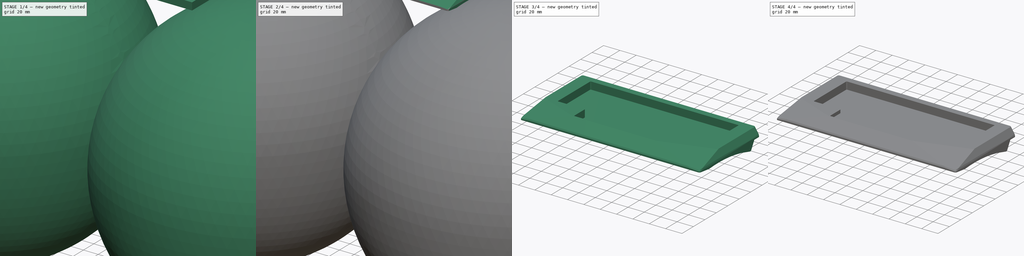
[diagram: build sequence overview — one tinted view per stage of 4, left to right]
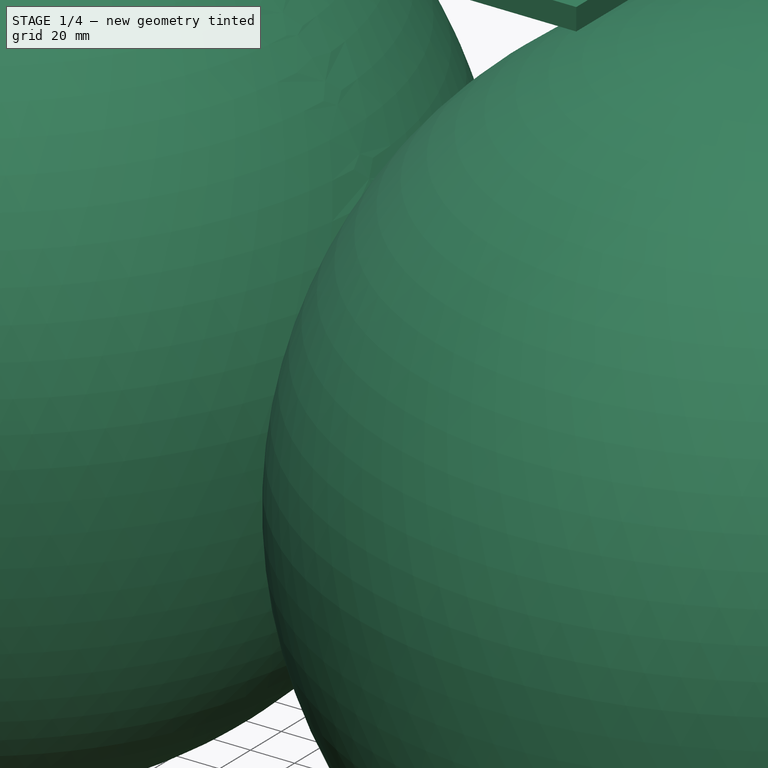
[diagram: stage 1 of 4 — iso view after this stage's code; geometry added in this stage tinted green]
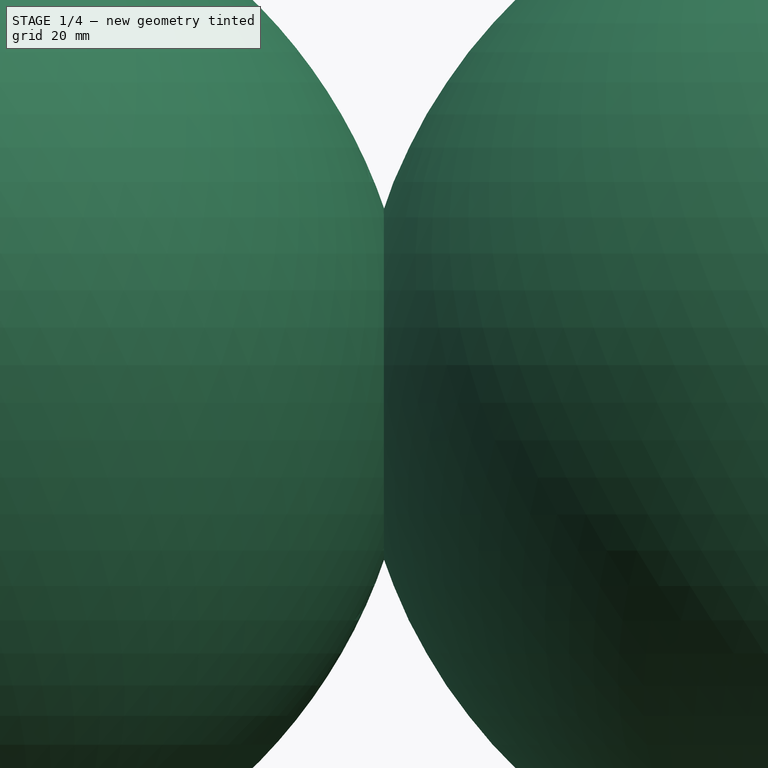
[diagram: stage 1 of 4 — front view after this stage's code; geometry added in this stage tinted green]
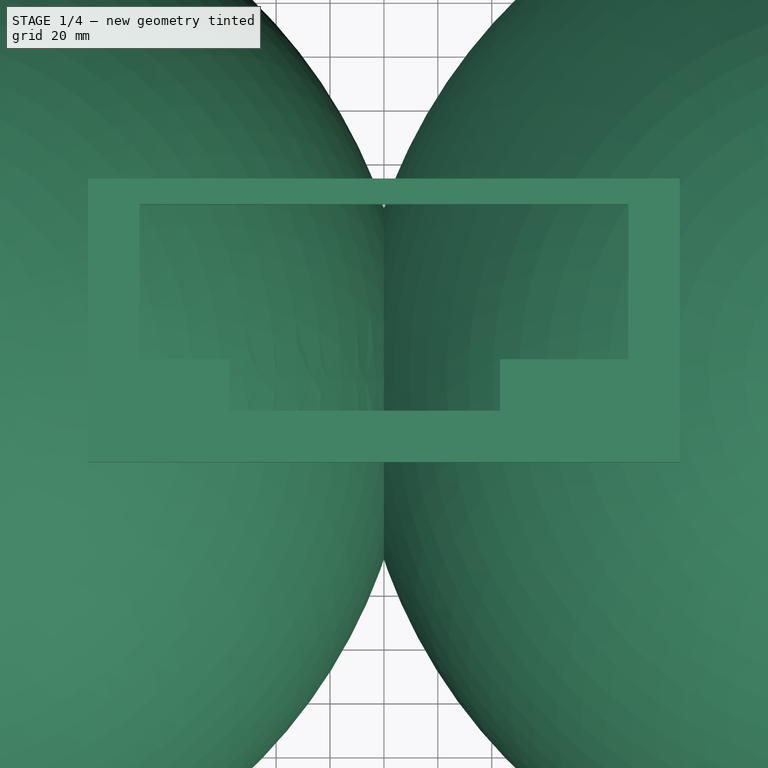
[diagram: stage 1 of 4 — top view after this stage's code; geometry added in this stage tinted green]
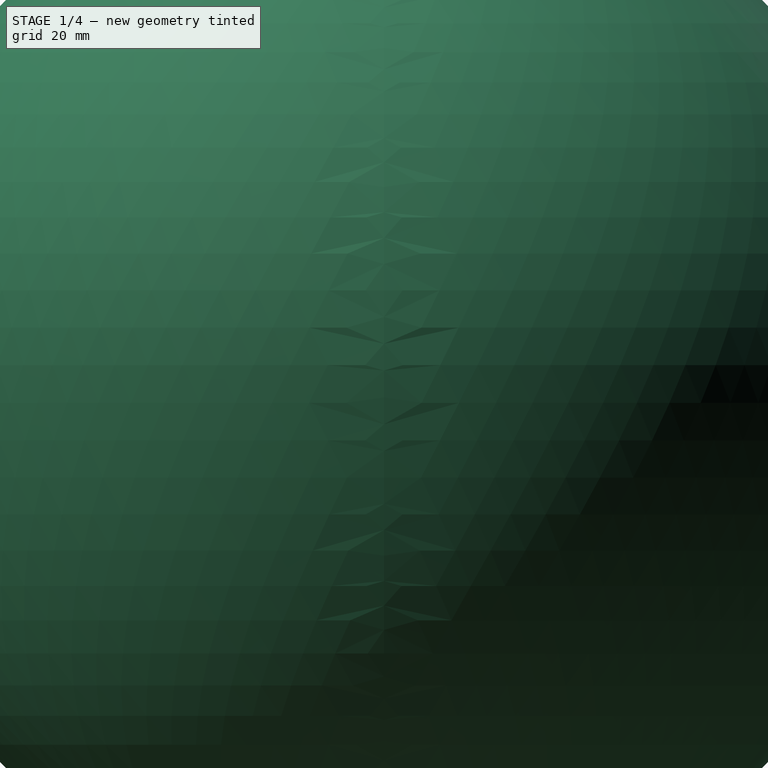
[diagram: stage 1 of 4 — right view after this stage's code; geometry added in this stage tinted green]
FCSTD DOCUMENT  (FreeCAD 0.21R33668 +26 (Git))
Label: Case
License: All rights reserved
LicenseURL: http://en.wikipedia.org/wiki/All_rights_reserved
objects: Sketcher::SketchObject×6, PartDesign::Fillet×4, PartDesign::Body×3, PartDesign::Pad×2, PartDesign::AdditiveSphere×2, PartDesign::Pocket×2, PartDesign::SubtractiveLoft×1, PartDesign::Chamfer×1, PartDesign::Boolean×1
note: 34 computed .brp shape members not serialized (recipe doc carries the construction recipe); baked Part::Feature solids carry a one-line shape summary decoded from their .brp

FEATURE [Sketcher::SketchObject] Sketch
  FullyConstrained = true
  MapMode = 5
  Support = -> [XY_Plane]
  expr: Constraints[26] = 19.05 * 3 + 0.2 * 2
  expr: Constraints[28] = 19.05 * 1.75
  expr: Constraints[29] = 19.05 * 2.5
  expr: Constraints[38] = 19.05
  expr: Constraints[39] = 19.05 / 2
  expr: Constraints[40] = 19.05
  expr: Constraints[6] = 19.05 * 4 + 0.2 * 2
  expr: Constraints[7] = 19.05 * 9.5 + 0.2 * 2
  sketch-geometry (15):
    g0: LineSegment StartX=-90.6875 StartY=38.3 StartZ=0 EndX=90.6875 EndY=38.3 EndZ=0
    g1: LineSegment StartX=90.6875 StartY=38.3 StartZ=0 EndX=90.6875 EndY=-38.3 EndZ=0
    g2: LineSegment StartX=90.6875 StartY=-38.3 StartZ=0 EndX=-90.6875 EndY=-38.3 EndZ=0
    g3: LineSegment StartX=-90.6875 StartY=-38.3 StartZ=0 EndX=-90.6875 EndY=38.3 EndZ=0
    g4: LineSegment StartX=-90.6875 StartY=38.3 StartZ=0 EndX=-90.6875 EndY=-19.25 EndZ=0
    g5: LineSegment StartX=-90.6875 StartY=-19.25 StartZ=0 EndX=-57.35 EndY=-19.25 EndZ=0
    g6: LineSegment StartX=-57.35 StartY=-19.25 StartZ=0 EndX=-57.35 EndY=-38.3 EndZ=0
    g7: LineSegment StartX=-57.35 StartY=-38.3 StartZ=0 EndX=43.0625 EndY=-38.3 EndZ=0
    g8: LineSegment StartX=43.0625 StartY=-38.3 StartZ=0 EndX=43.0625 EndY=-19.25 EndZ=0
    g9: LineSegment StartX=43.0625 StartY=-19.25 StartZ=0 EndX=90.6875 EndY=-19.25 EndZ=0
    g10: LineSegment StartX=90.6875 StartY=-19.25 StartZ=0 EndX=90.6875 EndY=38.3 EndZ=0
    g11: LineSegment StartX=-109.737 StartY=47.825 StartZ=0 EndX=109.737 EndY=47.825 EndZ=0
    g12: LineSegment StartX=109.737 StartY=47.825 StartZ=0 EndX=109.737 EndY=-57.35 EndZ=0
    g13: LineSegment StartX=109.737 StartY=-57.35 StartZ=0 EndX=-109.737 EndY=-57.35 EndZ=0
    g14: LineSegment StartX=-109.737 StartY=-57.35 StartZ=0 EndX=-109.737 EndY=47.825 EndZ=0
  constraints (41):
    c: Coincident(g0,g1)
    c: Coincident(g1,g2)
    c: Coincident(g2,g3)
    c: Coincident(g3,g0)
    c: Horizontal(g2)
    c: Vertical(g1)
    c: Distance(g3) = 76.6
    c: Distance(g0) = 181.375
    c: Symmetric(g0,g2,g-1)
    c: Symmetric(g0,g0,g-2)
    c: Coincident(g4,g0)
    c: Coincident(g5,g4)
    c: Horizontal(g5)
    c: Coincident(g6,g5)
    c: Vertical(g6)
    c: Coincident(g7,g6)
    c: Coincident(g8,g7)
    c: Coincident(g9,g8)
    c: PointOnObject(g9,g1)
    c: Horizontal(g9)
    c: Coincident(g10,g9)
    c: Coincident(g10,g0)
    c: Vertical(g8)
    c: PointOnObject(g4,g3)
    c: PointOnObject(g6,g2)
    c: PointOnObject(g7,g2)
    c: Distance(g4) = 57.55
    c: PointOnObject(g8,g5)
    c: Distance(g5) = 33.3375
    c: Distance(g9) = 47.625
    c: Coincident(g11,g12)
    c: Coincident(g12,g13)
    c: Coincident(g13,g14)
    c: Coincident(g14,g11)
    c: Horizontal(g13)
    c: Vertical(g12)
    c: Vertical(g14)
    c: Symmetric(g11,g11,g-2)
    c: Distance(g0,g14) = 19.05
    c: Distance(g0,g11) = 9.525
    c: Distance(g2,g13) = 19.05
FEATURE [PartDesign::Pad] Pad
  Direction = (0,0,1)
  Length = 10
  Length2 = 10
  Profile = -> Sketch
  ReferenceAxis = -> Sketch [N_Axis]
  Type = 0
FEATURE [PartDesign::AdditiveSphere] Sphere
  Angle1 = -90
  Angle2 = 90
  Angle3 = 360
  AttacherType = Attacher::AttachEngine3D
  AttachmentOffset = pos=(189,-25,-186) rot=(0,0,1;0rad)
  MapMode = 2
  Placement = pos=(189,-25,-186) rot=(0,0,1;0rad)
  Radius = 200
  Refine = true
  Support = -> [X_Axis001]
FEATURE [PartDesign::Body] Body001
  Group = -> [Sphere]
  Origin = -> Origin001
  Tip = -> Sphere
FEATURE [PartDesign::AdditiveSphere] Sphere001
  Angle1 = -90
  Angle2 = 90
  Angle3 = 360
  AttacherType = Attacher::AttachEngine3D
  AttachmentOffset = pos=(-189,-25,-186) rot=(0,0,1;0rad)
  MapMode = 2
  Placement = pos=(-189,-25,-186) rot=(0,0,1;0rad)
  Radius = 200
  Refine = true
  Support = -> [X_Axis001]
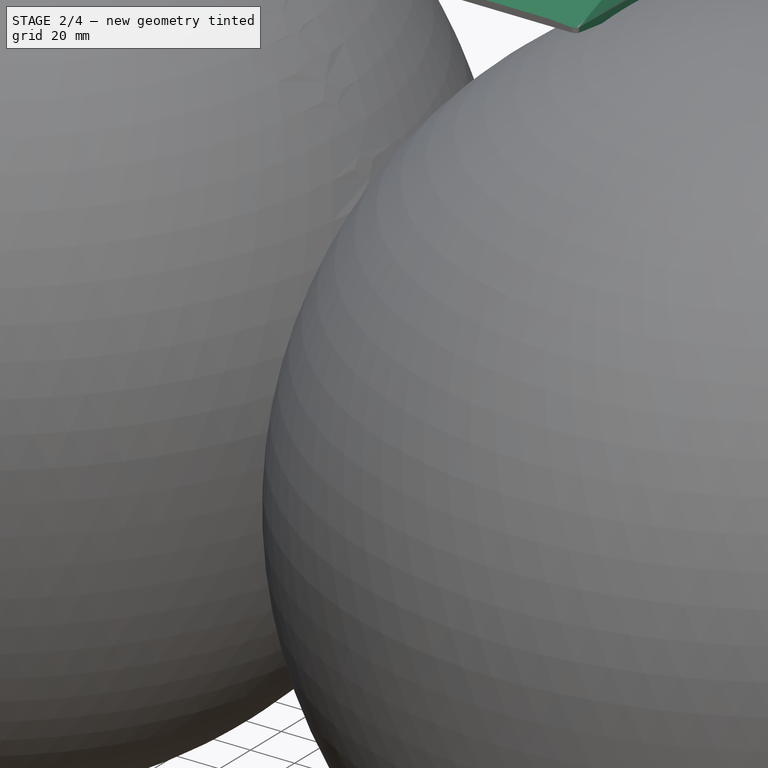
[diagram: stage 2 of 4 — iso view after this stage's code; geometry added in this stage tinted green]
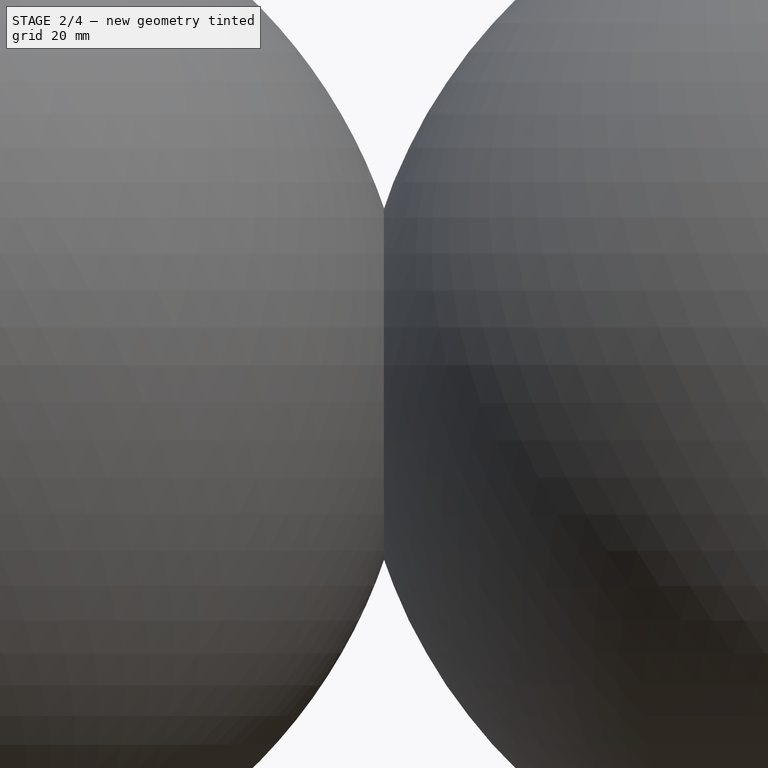
[diagram: stage 2 of 4 — front view after this stage's code; geometry added in this stage tinted green]
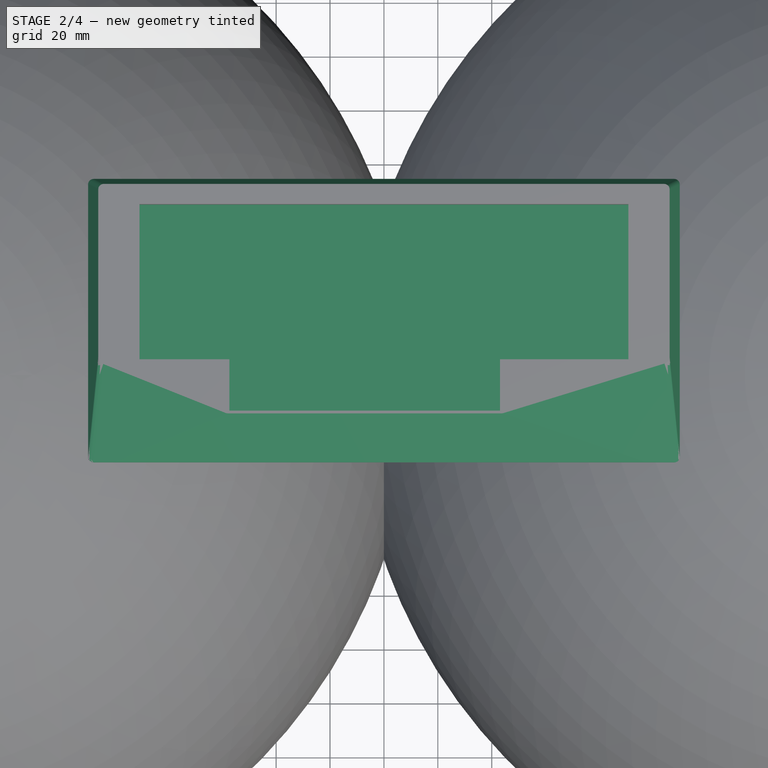
[diagram: stage 2 of 4 — top view after this stage's code; geometry added in this stage tinted green]
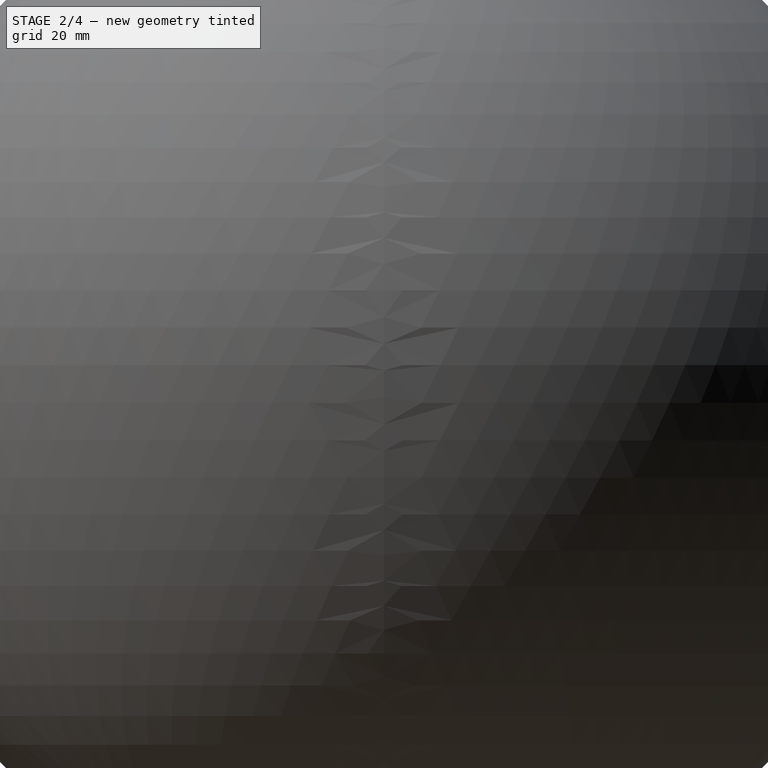
[diagram: stage 2 of 4 — right view after this stage's code; geometry added in this stage tinted green]
FEATURE [Sketcher::SketchObject] Sketch001
  FullyConstrained = true
  MapMode = 5
  Placement = pos=(109.737,0,0) rot=(0.57735,0.57735,0.57735;2.0944rad)
  Support = -> [Pad]
  expr: Constraints[10] = 19.05 * 2.5 + 0.2
  expr: Constraints[11] = -19.05 * 3 - 0.2
  expr: Constraints[15] = 19.05 / 2
  sketch-geometry (6):
    g0: LineSegment StartX=47.825 StartY=1 StartZ=0 EndX=-57.35 EndY=1 EndZ=0
    g1: LineSegment StartX=-57.35 StartY=1 StartZ=0 EndX=-57.35 EndY=-1 EndZ=0
    g2: LineSegment StartX=-57.35 StartY=-1 StartZ=0 EndX=31.9683 EndY=-11.9669 EndZ=0
    g3: LineSegment StartX=31.9683 StartY=-11.9669 StartZ=0 EndX=38.3 EndY=-1 EndZ=0
    g4: LineSegment StartX=38.3 StartY=-1 StartZ=0 EndX=47.825 EndY=-1 EndZ=0
    g5: LineSegment StartX=47.825 StartY=-1 StartZ=0 EndX=47.825 EndY=1 EndZ=0
  constraints (18):
    c: Horizontal(g0)
    c: Coincident(g1,g0)
    c: Vertical(g1)
    c: Coincident(g2,g1)
    c: Coincident(g3,g2)
    c: Coincident(g4,g3)
    c: Horizontal(g4)
    c: Coincident(g5,g4)
    c: Vertical(g5)
    c: Coincident(g5,g0)
    c: DistanceX(g-2,g0) = 47.825
    c: DistanceX(g-2,g0) = -57.35
    c: DistanceY(g-1,g1) = -1
    c: PointOnObject(g1,g4)
    c: Angle(g3,g4) = 2.0944
    c: Distance(g4) = 9.525
    c: Angle(g2,g-1) = 0.122173
    c: DistanceY(g-1,g0) = 1
FEATURE [PartDesign::Pad] Pad001
  BaseFeature = -> Pad
  Direction = (1,0,0)
  Length = 10
  Length2 = 10
  Profile = -> Sketch001
  ReferenceAxis = -> Sketch001 [N_Axis]
  Refine = true
  Type = 3
  UpToFace = -> Pad [Face4]
FEATURE [Sketcher::SketchObject] Sketch002
  FullyConstrained = true
  MapMode = 5
  Placement = pos=(0,0,10) rot=(0,0,1;0rad)
  expr: Constraints[10] = -19.05 * 2 - 0.2 - 1
  expr: Constraints[19] = 19.05 * 6.5
  expr: Constraints[20] = 19.05 * 12
  expr: Constraints[21] = -19.05 * 1 - 0.2 - 1
  expr: Constraints[30] = 19.05 * 9.5 + 0.2 * 2 + 19.05 * 0.75 * 2 + 1 * 2
  expr: Constraints[32] = 19.05 * 2.5 + 0.2 - 2
  expr: Constraints[8] = 19.05 * 5.25 + 0.2 * 2 + 1 * 2
  expr: Constraints[9] = -19.05 * 3 - 0.2 - 1
  sketch-geometry (21):
    g0: LineSegment StartX=-105.975 StartY=43.825 StartZ=0 EndX=-105.975 EndY=-20.25 EndZ=0
    g1: LineSegment StartX=105.975 StartY=-20.25 StartZ=0 EndX=105.975 EndY=43.825 EndZ=0
    g2: LineSegment StartX=103.975 StartY=45.825 StartZ=0 EndX=-103.975 EndY=45.825 EndZ=0
    g3: LineSegment StartX=-105.975 StartY=-20.25 StartZ=0 EndX=-58.35 EndY=-39.3 EndZ=0
    g4: LineSegment StartX=-58.35 StartY=-39.3 StartZ=0 EndX=44.0625 EndY=-39.3 EndZ=0
    g5: LineSegment StartX=44.0625 StartY=-39.3 StartZ=0 EndX=105.975 EndY=-20.25 EndZ=0
    g6: LineSegment StartX=-114.3 StartY=61.9125 StartZ=0 EndX=114.3 EndY=61.9125 EndZ=0
    g7: LineSegment StartX=114.3 StartY=61.9125 StartZ=0 EndX=114.3 EndY=-61.9125 EndZ=0
    g8: LineSegment StartX=114.3 StartY=-61.9125 StartZ=0 EndX=-114.3 EndY=-61.9125 EndZ=0
    g9: LineSegment StartX=-114.3 StartY=-61.9125 StartZ=0 EndX=-114.3 EndY=61.9125 EndZ=0
    g10: ArcOfCircle CenterX=-103.975 CenterY=43.825 CenterZ=0 NormalX=0 NormalY=0 NormalZ=1 AngleXU=0 Radius=2 StartAngle=1.5708 EndAngle=3.14159
    g11: ArcOfCircle CenterX=103.975 CenterY=43.825 CenterZ=0 NormalX=0 NormalY=0 NormalZ=1 AngleXU=0 Radius=2 StartAngle=1.2e-15 EndAngle=1.5708
    g12: LineSegment StartX=-105.975 StartY=43.825 StartZ=0 EndX=-105.975 EndY=-18.25 EndZ=0
    g13: LineSegment StartX=-104.118 StartY=-20.9928 StartZ=0 EndX=-58.7076 EndY=-39.157 EndZ=0
    g14: LineSegment StartX=-57.9648 StartY=-39.3 StartZ=0 EndX=43.7618 EndY=-39.3 EndZ=0
    g15: LineSegment StartX=44.3499 StartY=-39.2116 StartZ=0 EndX=104.063 EndY=-20.8382 EndZ=0
    g16: LineSegment StartX=105.975 StartY=-18.25 StartZ=0 EndX=105.975 EndY=43.825 EndZ=0
    g17: ArcOfCircle CenterX=-103.021 CenterY=-18.25 CenterZ=0 NormalX=0 NormalY=0 NormalZ=1 AngleXU=0 Radius=2.95407 StartAngle=3.14159 EndAngle=4.33188
    g18: ArcOfCircle CenterX=-57.9648 CenterY=-37.3 CenterZ=0 NormalX=0 NormalY=0 NormalZ=1 AngleXU=0 Radius=2 StartAngle=4.33188 EndAngle=4.71239
    g19: ArcOfCircle CenterX=43.7618 CenterY=-37.3 CenterZ=0 NormalX=0 NormalY=0 NormalZ=1 AngleXU=0 Radius=2 StartAngle=4.71239 EndAngle=5.01089
    g20: ArcOfCircle CenterX=103.267 CenterY=-18.25 CenterZ=0 NormalX=0 NormalY=0 NormalZ=1 AngleXU=0 Radius=2.70792 StartAngle=5.01089 EndAngle=6.28319
  constraints (57):
    c: Vertical(g1)
    c: Vertical(g0)
    c: Coincident(g3,g0)
    c: Coincident(g4,g3)
    c: Horizontal(g4)
    c: Coincident(g5,g4)
    c: Coincident(g5,g1)
    c: Equal(g0,g1)
    c: Distance(g3,g4) = 102.413
    c: DistanceX(g-2,g3) = -58.35
    c: DistanceY(g-1,g3) = -39.3
    c: Coincident(g6,g7)
    c: Coincident(g7,g8)
    c: Coincident(g8,g9)
    c: Coincident(g9,g6)
    c: Horizontal(g8)
    c: Vertical(g7)
    c: Symmetric(g6,g6,g-2)
    c: Symmetric(g6,g8,g-1)
    c: Distance(g9) = 123.825
    c: Distance(g6) = 228.6
    c: DistanceY(g-1,g0) = -20.25
    c: DistanceY(g3,g3) = 19.05
    c: DistanceX(g3,g3) = 47.625
    c: DistanceY(g5,g5) = 19.05
    c: DistanceX(g5,g5) = 61.9125
    c: Tangent(g0,g10) = -1.5708
    c: Tangent(g2,g10) = -1.5708
    c: Tangent(g2,g11) = -1.5708
    c: Tangent(g1,g11) = -1.5708
    c: Distance(g1,g0) = 211.95
    c: Symmetric(g0,g1,g-2)
    c: DistanceY(g-1,g2) = 45.825
    c: Equal(g10,g11)
    c: Radius(g10) = 2
    c: Coincident(g12,g10)
    c: Horizontal(g14)
    c: Coincident(g16,g1)
    c: Vertical(g16)
    c: Vertical(g12)
    c: Tangent(g12,g17) = -1.5708
    c: Tangent(g13,g17) = -1.5708
    c: Tangent(g13,g18) = -1.5708
    c: Tangent(g14,g18) = -1.5708
    c: Tangent(g14,g19) = -1.5708
    c: Tangent(g15,g19) = -1.5708
    c: Tangent(g15,g20) = -1.5708
    c: Tangent(g16,g20) = -1.5708
    c: Equal(g19,g18)
    c: PointOnObject(g14,g4)
    c: PointOnObject(g13,g3)
    c: PointOnObject(g13,g3)
    c: PointOnObject(g15,g5)
    c: PointOnObject(g15,g5)
    c: Distance(g12,g0) = 2
    c: Equal(g18,g10)
    c: Distance(g1,g16) = 2
FEATURE [Sketcher::SketchObject] Sketch003
  AttachmentOffset = pos=(0,0,-9) rot=(0,0,1;0rad)
  FullyConstrained = true
  MapMode = 5
  Placement = pos=(0,0,1) rot=(0,0,1;0rad)
  expr: Constraints[11] = 19.05 * 6.5
  expr: Constraints[12] = 19.05 * 12
  expr: Constraints[28] = 19.05 * 9.5 + 0.2 * 2 + 19.05 * 2
  expr: Constraints[29] = 19.05 * 2.5 + 0.2
  expr: Constraints[2] = -19.05 * 3 - 0.2
  sketch-geometry (21):
    g0: LineSegment StartX=-107.737 StartY=47.825 StartZ=0 EndX=107.737 EndY=47.825 EndZ=0
    g1: LineSegment StartX=109.737 StartY=45.825 StartZ=0 EndX=109.737 EndY=-57.35 EndZ=0
    g2: LineSegment StartX=-109.737 StartY=-57.35 StartZ=0 EndX=-109.737 EndY=45.825 EndZ=0
    g3: LineSegment StartX=-114.3 StartY=61.9125 StartZ=0 EndX=114.3 EndY=61.9125 EndZ=0
    g4: LineSegment StartX=114.3 StartY=61.9125 StartZ=0 EndX=114.3 EndY=-61.9125 EndZ=0
    g5: LineSegment StartX=114.3 StartY=-61.9125 StartZ=0 EndX=-114.3 EndY=-61.9125 EndZ=0
    g6: LineSegment StartX=-114.3 StartY=-61.9125 StartZ=0 EndX=-114.3 EndY=61.9125 EndZ=0
    g7: LineSegment StartX=-109.737 StartY=-57.35 StartZ=0 EndX=-104.737 EndY=-59.35 EndZ=0
    g8: LineSegment StartX=-104.737 StartY=-59.35 StartZ=0 EndX=103.237 EndY=-59.35 EndZ=0
    g9: LineSegment StartX=103.237 StartY=-59.35 StartZ=0 EndX=109.737 EndY=-57.35 EndZ=0
    g10: ArcOfCircle CenterX=-107.737 CenterY=45.825 CenterZ=0 NormalX=0 NormalY=0 NormalZ=1 AngleXU=0 Radius=2 StartAngle=1.5708 EndAngle=3.14159
    g11: ArcOfCircle CenterX=107.737 CenterY=45.825 CenterZ=0 NormalX=0 NormalY=0 NormalZ=1 AngleXU=0 Radius=2 StartAngle=1.5e-15 EndAngle=1.5708
    g12: LineSegment StartX=-109.737 StartY=45.825 StartZ=0 EndX=-109.737 EndY=-55.35 EndZ=0
    g13: LineSegment StartX=-107.881 StartY=-58.0928 StartZ=0 EndX=-105.095 EndY=-59.207 EndZ=0
    g14: LineSegment StartX=-104.352 StartY=-59.35 StartZ=0 EndX=102.937 EndY=-59.35 EndZ=0
    g15: LineSegment StartX=103.525 StartY=-59.2616 StartZ=0 EndX=107.826 EndY=-57.9382 EndZ=0
    g16: LineSegment StartX=109.737 StartY=-55.35 StartZ=0 EndX=109.737 EndY=45.825 EndZ=0
    g17: ArcOfCircle CenterX=-106.783 CenterY=-55.35 CenterZ=0 NormalX=0 NormalY=0 NormalZ=1 AngleXU=0 Radius=2.95407 StartAngle=3.14159 EndAngle=4.33188
    g18: ArcOfCircle CenterX=-104.352 CenterY=-57.35 CenterZ=0 NormalX=0 NormalY=0 NormalZ=1 AngleXU=0 Radius=2 StartAngle=4.33188 EndAngle=4.71239
    g19: ArcOfCircle CenterX=102.937 CenterY=-57.35 CenterZ=0 NormalX=0 NormalY=0 NormalZ=1 AngleXU=0 Radius=2 StartAngle=4.71239 EndAngle=5.01089
    g20: ArcOfCircle CenterX=107.03 CenterY=-55.35 CenterZ=0 NormalX=0 NormalY=0 NormalZ=1 AngleXU=0 Radius=2.70792 StartAngle=5.01089 EndAngle=6.28319
  constraints (53):
    c: Vertical(g1)
    c: Vertical(g2)
    c: DistanceY(g-1,g2) = -57.35
    c: Coincident(g3,g4)
    c: Coincident(g4,g5)
    c: Coincident(g5,g6)
    c: Coincident(g6,g3)
    c: Horizontal(g5)
    c: Vertical(g4)
    c: Symmetric(g3,g3,g-2)
    c: Symmetric(g3,g5,g-1)
    c: Distance(g6) = 123.825
    c: Distance(g3) = 228.6
    c: Coincident(g7,g2)
    c: Coincident(g8,g7)
    c: Horizontal(g8)
    c: Coincident(g9,g8)
    c: Coincident(g9,g1)
    c: Distance(g8,g1) = 6.5
    c: Distance(g7,g2) = 5
    c: Distance(g2,g8) = 2
    c: Equal(g1,g2)
    c: Tangent(g2,g10) = 1.5708
    c: Tangent(g0,g10) = 1.5708
    c: Tangent(g0,g11) = 1.5708
    c: Tangent(g1,g11) = 1.5708
    c: Symmetric(g2,g1,g-2)
    c: Equal(g11,g10)
    c: Distance(g2,g1) = 219.475
    c: DistanceY(g-1,g0) = 47.825
    c: Radius(g10) = 2
    c: Coincident(g12,g10)
    c: Vertical(g12)
    c: Horizontal(g14)
    c: Coincident(g16,g11)
    c: Vertical(g16)
    c: Tangent(g12,g17) = -1.5708
    c: Tangent(g13,g17) = -1.5708
    c: Tangent(g13,g18) = -1.5708
    c: Tangent(g14,g18) = -1.5708
    c: Tangent(g14,g19) = -1.5708
    c: Tangent(g15,g19) = -1.5708
    c: Tangent(g15,g20) = -1.5708
    c: Tangent(g16,g20) = -1.5708
    c: Equal(g19,g18)
    c: PointOnObject(g13,g7)
    c: PointOnObject(g15,g9)
    c: PointOnObject(g15,g9)
    c: PointOnObject(g13,g7)
    c: PointOnObject(g14,g8)
    c: Distance(g2,g12) = 2
    c: Distance(g1,g16) = 2
    c: Equal(g18,g10)
FEATURE [PartDesign::Fillet] Fillet
  Base = -> Pad001 [Edge11,Edge42,Edge41,Edge13]
  BaseFeature = -> Pad001
  Radius = 2
  Refine = true
  SupportTransform = false
  UseAllEdges = false
FEATURE [PartDesign::SubtractiveLoft] SubtractiveLoft
  BaseFeature = -> Fillet
  Closed = false
  Profile = -> Sketch002
  Refine = true
  Ruled = false
  Sections = -> [Sketch003]
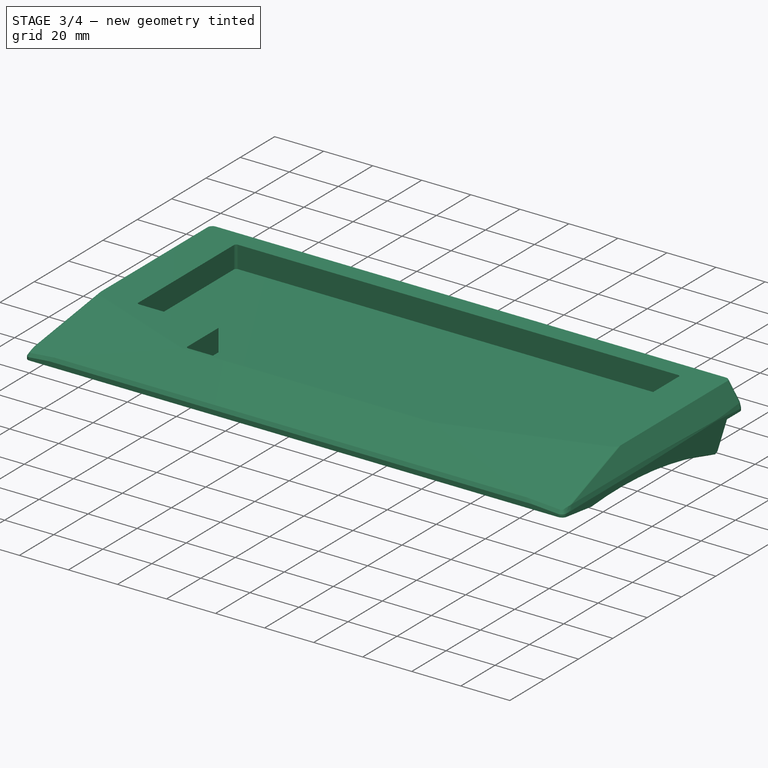
[diagram: stage 3 of 4 — iso view after this stage's code; geometry added in this stage tinted green]
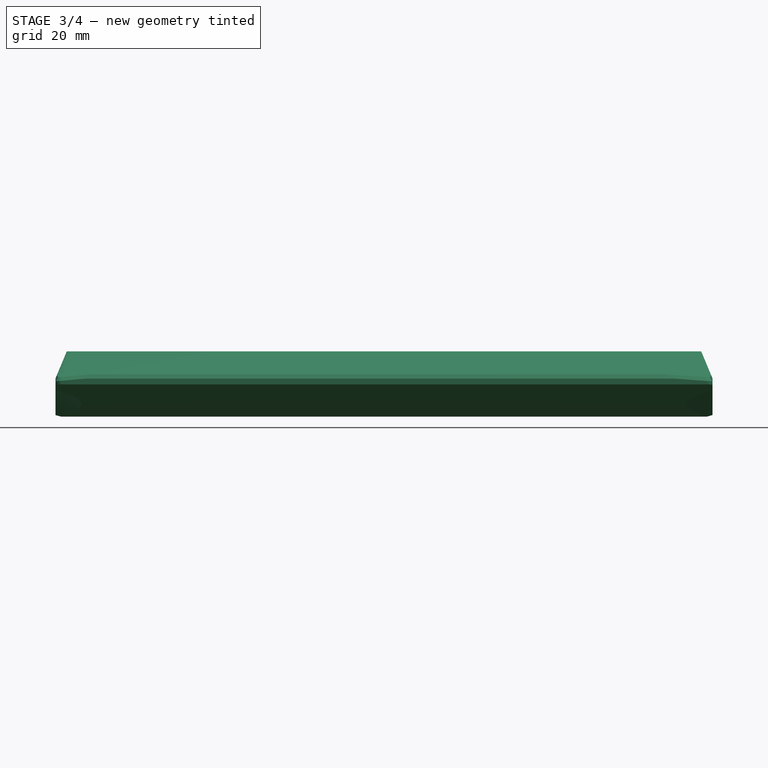
[diagram: stage 3 of 4 — front view after this stage's code; geometry added in this stage tinted green]
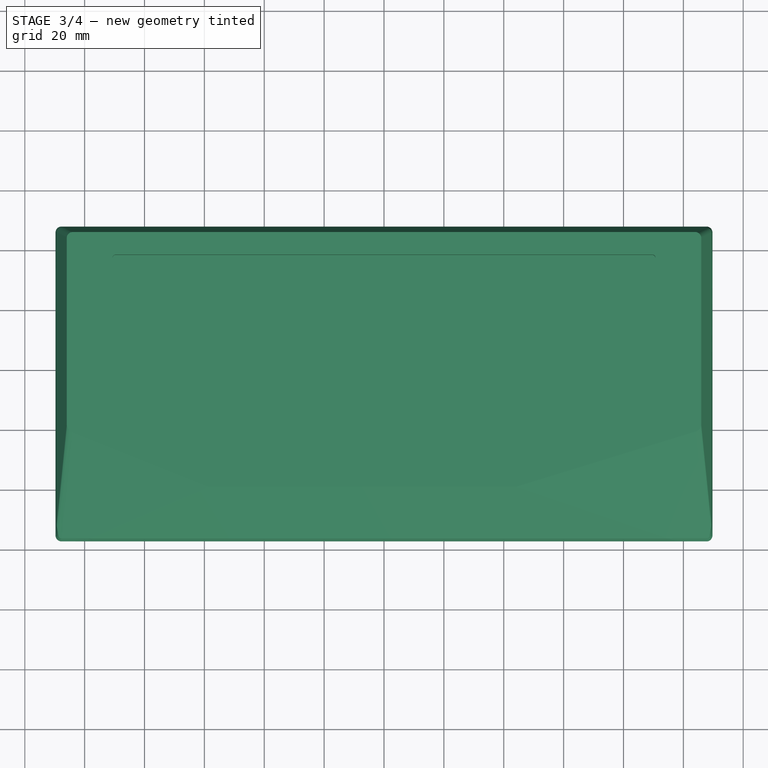
[diagram: stage 3 of 4 — top view after this stage's code; geometry added in this stage tinted green]
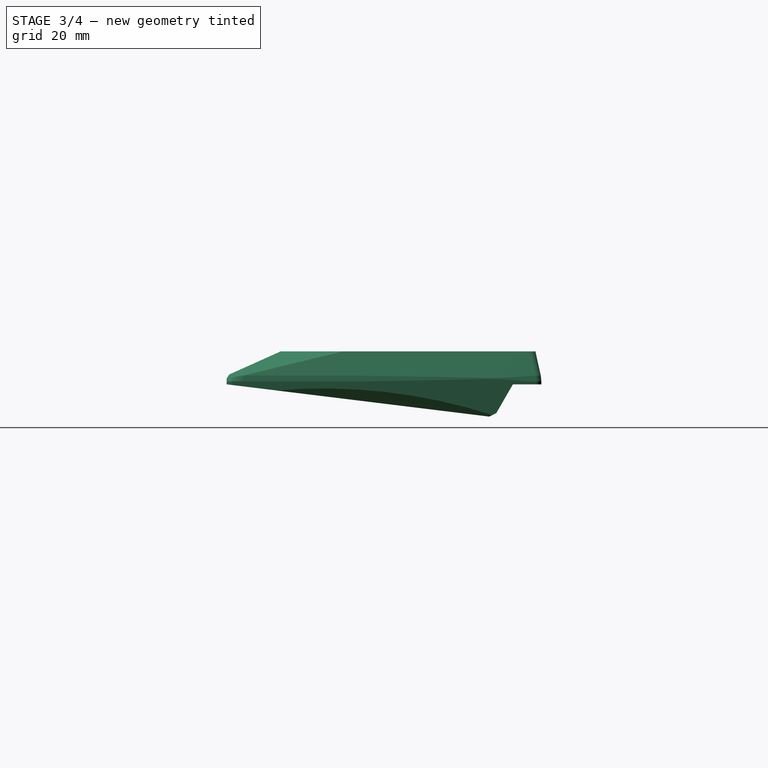
[diagram: stage 3 of 4 — right view after this stage's code; geometry added in this stage tinted green]
FEATURE [PartDesign::Chamfer] Chamfer
  Angle = 45
  Base = -> SubtractiveLoft [Edge50]
  BaseFeature = -> SubtractiveLoft
  ChamferType = 0
  FlipDirection = false
  Refine = true
  Size = 1
  Size2 = 1
  SupportTransform = false
  UseAllEdges = false
FEATURE [PartDesign::Body] Body002
  Group = -> [Sphere001]
  Origin = -> Origin002
  Tip = -> Sphere001
FEATURE [PartDesign::Boolean] Boolean
  BaseFeature = -> Chamfer
  Group = -> [Body001,Body002]
  Refine = true
  Type = 1
FEATURE [Sketcher::SketchObject] Sketch004
  FullyConstrained = true
  MapMode = 5
  Placement = pos=(-109.737,9.7e-15,1.445e-13) rot=(0.57735,-0.57735,-0.57735;2.0944rad)
  Support = -> [Boolean]
  sketch-geometry (4):
    g0: LineSegment StartX=-40 StartY=-7 StartZ=0 EndX=-20 EndY=-16.9716 EndZ=0
    g1: LineSegment StartX=-20 StartY=-16.9716 StartZ=0 EndX=-20 EndY=-21.9716 EndZ=0
    g2: LineSegment StartX=-20 StartY=-21.9716 StartZ=0 EndX=-40 EndY=-21.9716 EndZ=0
    g3: LineSegment StartX=-40 StartY=-21.9716 StartZ=0 EndX=-40 EndY=-7 EndZ=0
  constraints (12):
    c: Coincident(g1,g0)
    c: Vertical(g1)
    c: Coincident(g2,g1)
    c: Horizontal(g2)
    c: Coincident(g3,g2)
    c: Vertical(g3)
    c: Coincident(g3,g0)
    c: Angle(g0) = -0.462512
    c: DistanceY(g-1,g0) = -7
    c: DistanceX(g-2,g0) = -20
    c: Distance(g1) = 5
    c: Distance(g2) = 20
FEATURE [PartDesign::Pocket] Pocket
  BaseFeature = -> Boolean
  Direction = (1,0,-1.5e-15)
  Length = 0
  Length2 = 5
  Profile = -> Sketch004
  ReferenceAxis = -> Sketch004 [N_Axis]
  Refine = true
  Type = 3
  UpToFace = -> Boolean [Face1]
FEATURE [PartDesign::Fillet] Fillet001
  Base = -> Pocket [Edge129,Edge128,Edge133,Edge141,Edge139,Edge131]
  BaseFeature = -> Pocket
  Radius = 1
  Refine = true
  SupportTransform = false
  UseAllEdges = false
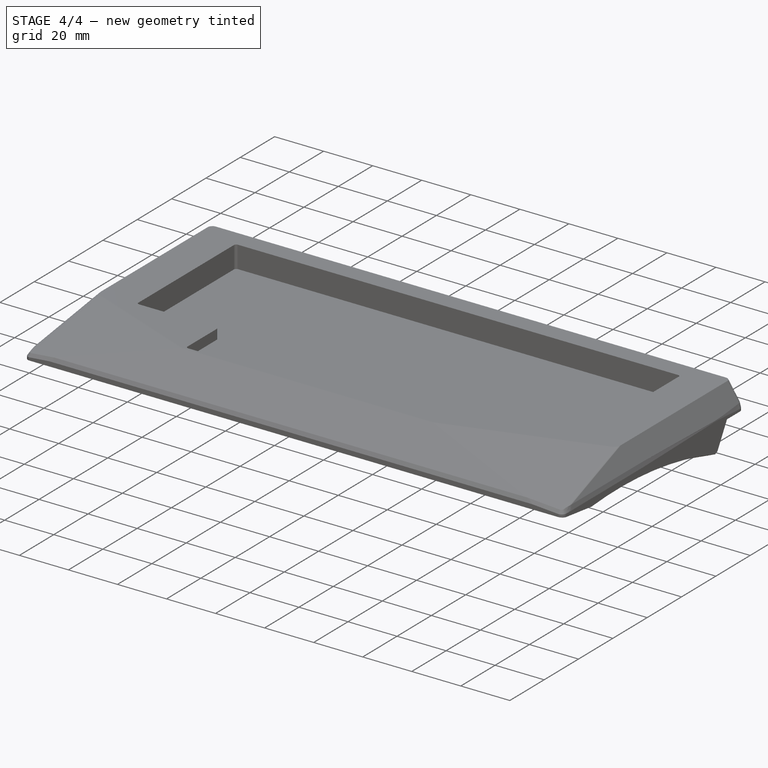
[diagram: stage 4 of 4 — iso view after this stage's code; geometry added in this stage tinted green]
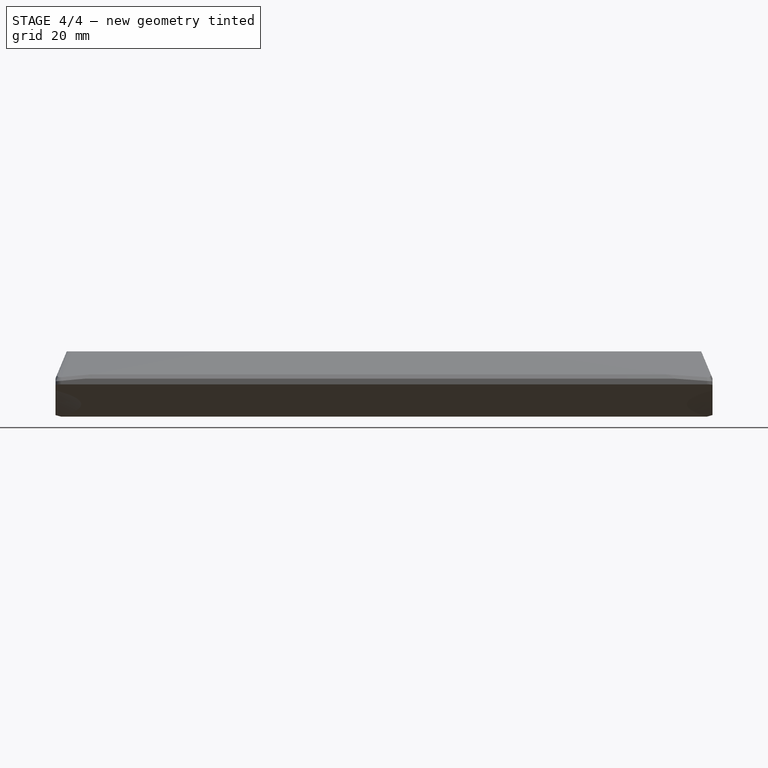
[diagram: stage 4 of 4 — front view after this stage's code; geometry added in this stage tinted green]
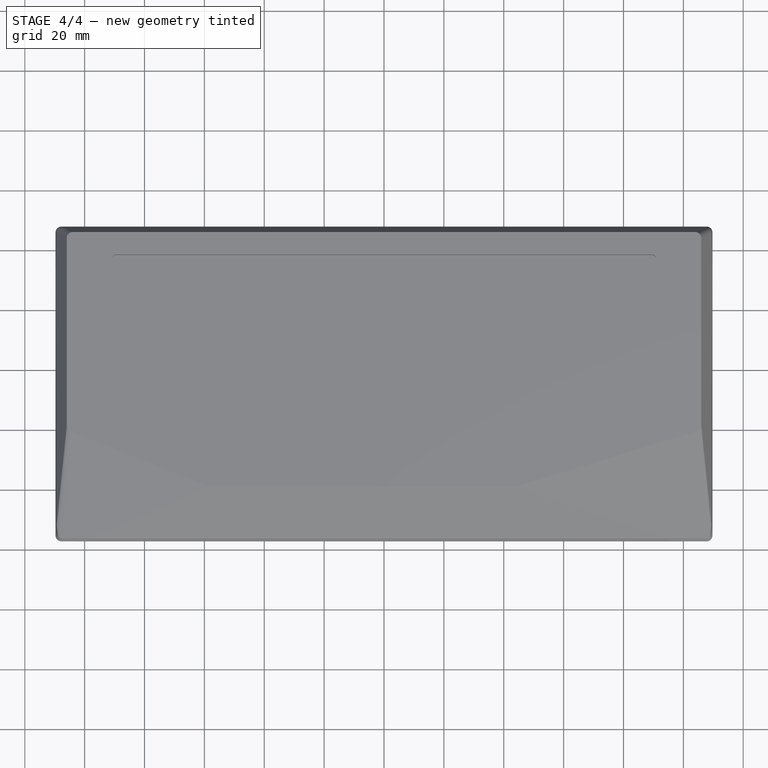
[diagram: stage 4 of 4 — top view after this stage's code; geometry added in this stage tinted green]
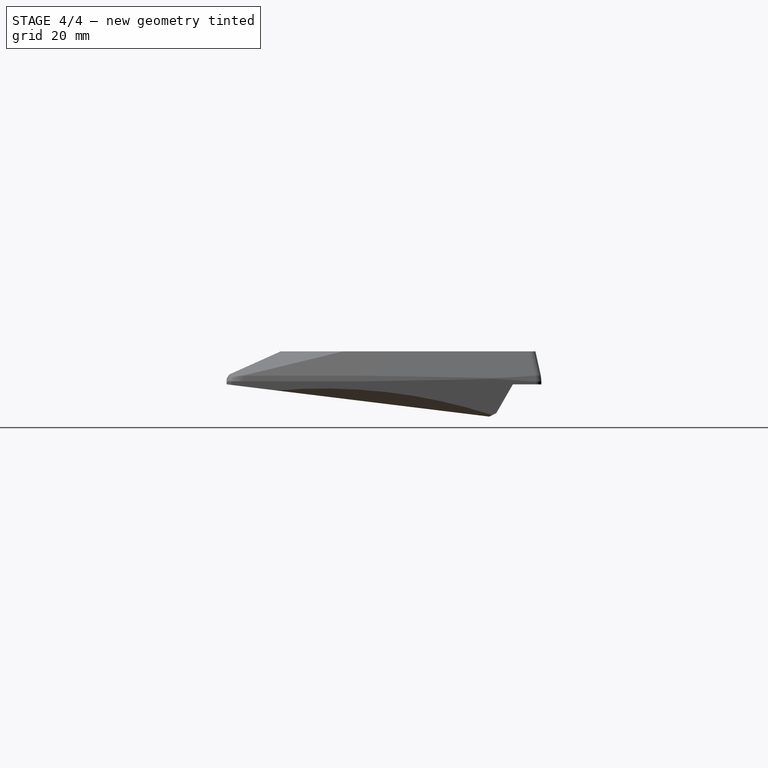
[diagram: stage 4 of 4 — right view after this stage's code; geometry added in this stage tinted green]
FEATURE [PartDesign::Fillet] Fillet002
  Base = -> Fillet001 [Edge45,Edge43]
  BaseFeature = -> Fillet001
  Radius = 1.2
  Refine = true
  SupportTransform = false
  UseAllEdges = false
FEATURE [Sketcher::SketchObject] Sketch005
  FullyConstrained = true
  MapMode = 5
  Placement = pos=(90.6875,-2.27e-14,0) rot=(-0.57735,0.57735,0.57735;4.18879rad)
  Support = -> [Fillet002]
  expr: Constraints[11] = 19.05 * 2 + 0.2
  sketch-geometry (4):
    g0: LineSegment StartX=0 StartY=6 StartZ=0 EndX=38.3 EndY=6 EndZ=0
    g1: LineSegment StartX=38.3 StartY=6 StartZ=0 EndX=38.3 EndY=1 EndZ=0
    g2: LineSegment StartX=38.3 StartY=1 StartZ=0 EndX=0 EndY=1 EndZ=0
    g3: LineSegment StartX=0 StartY=1 StartZ=0 EndX=0 EndY=6 EndZ=0
  constraints (12):
    c: Coincident(g0,g1)
    c: Coincident(g1,g2)
    c: Coincident(g2,g3)
    c: Coincident(g3,g0)
    c: Horizontal(g0)
    c: Horizontal(g2)
    c: Vertical(g1)
    c: Vertical(g3)
    c: PointOnObject(g0,g-2)
    c: DistanceY(g-1,g2) = 1
    c: DistanceY(g-1,g0) = 6
    c: DistanceX(g-2,g1) = 38.3
FEATURE [PartDesign::Pocket] Pocket001
  BaseFeature = -> Fillet002
  Direction = (1,-1e-16,-1e-16)
  Length = 0
  Length2 = 5
  Profile = -> Sketch005
  ReferenceAxis = -> Sketch005 [N_Axis]
  Refine = true
  Type = 3
  UpToFace = -> Fillet002 [Face6]
FEATURE [PartDesign::Fillet] Fillet003
  Base = -> Pocket001 [Edge150,Edge162]
  BaseFeature = -> Pocket001
  Radius = 1
  Refine = true
  SupportTransform = false
  UseAllEdges = false
FEATURE [PartDesign::Body] Body
  Group = -> [Sketch,Pad,Sketch001,Pad001,Sketch002,Sketch003,Fillet,SubtractiveLoft,Chamfer,Boolean,Sketch004,Pocket,Fillet001,Fillet002,Sketch005,Pocket001,Fillet003]
  Origin = -> Origin
  Tip = -> Fillet003
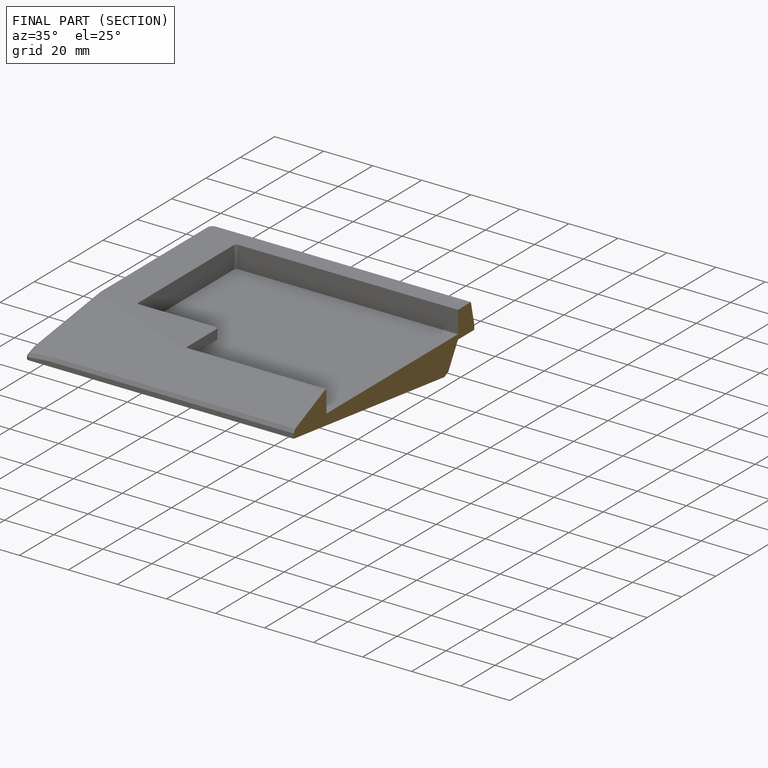
[diagram: finished part — half-section view (interior)]
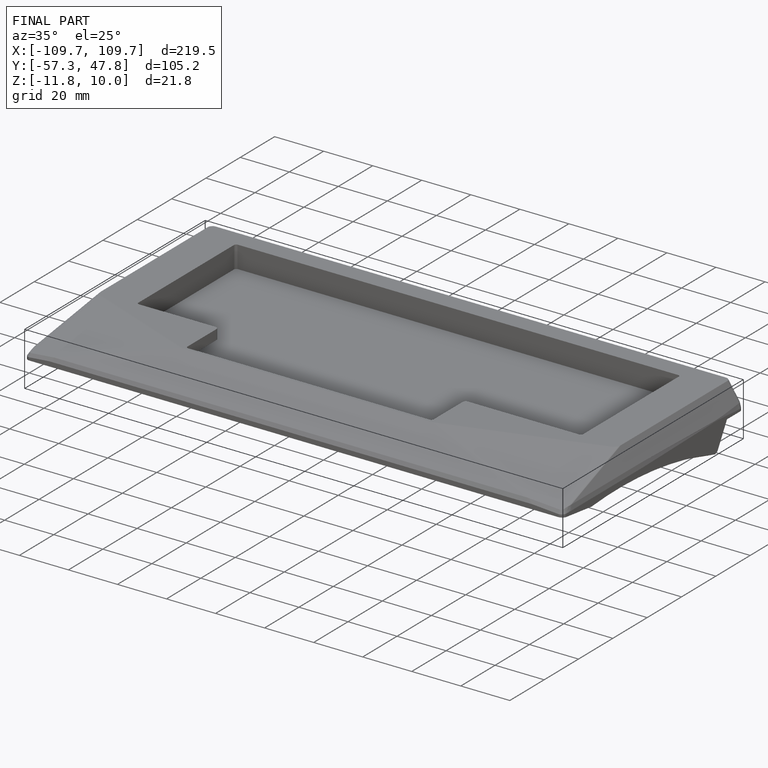
[diagram: finished part — iso view with bounding-box wireframe]
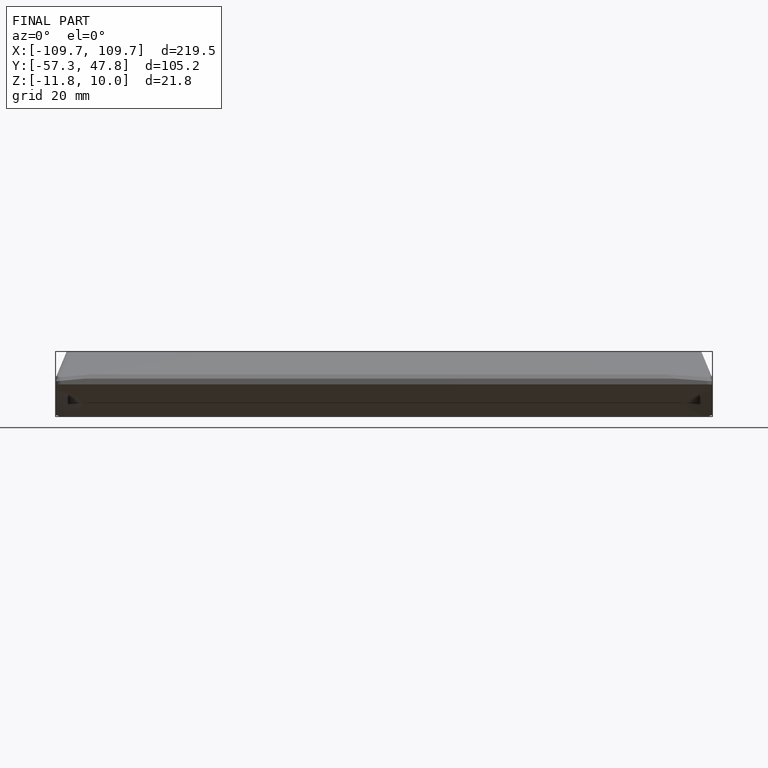
[diagram: finished part — front view with bounding-box wireframe]
